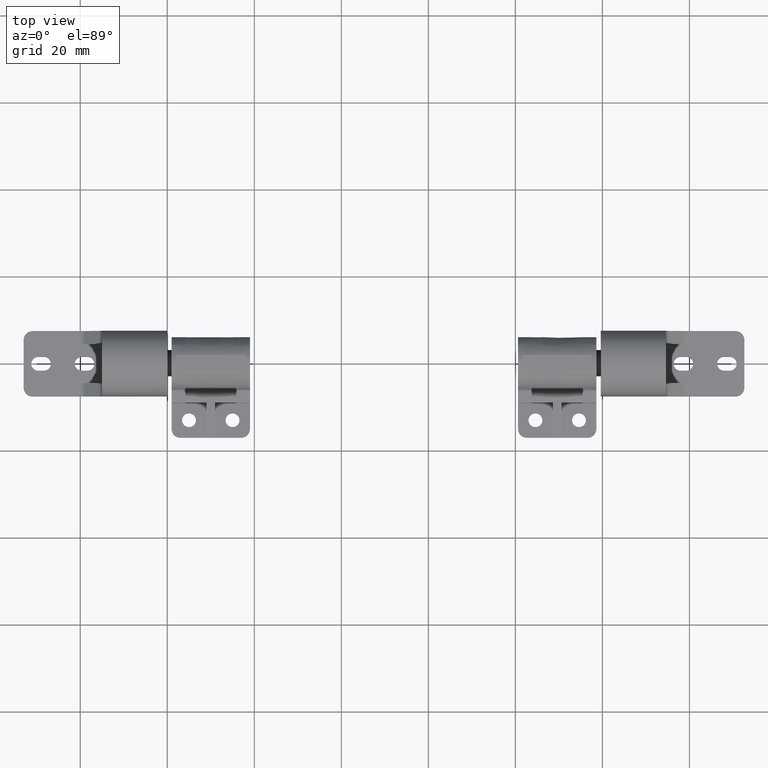
[diagram: clean part render]
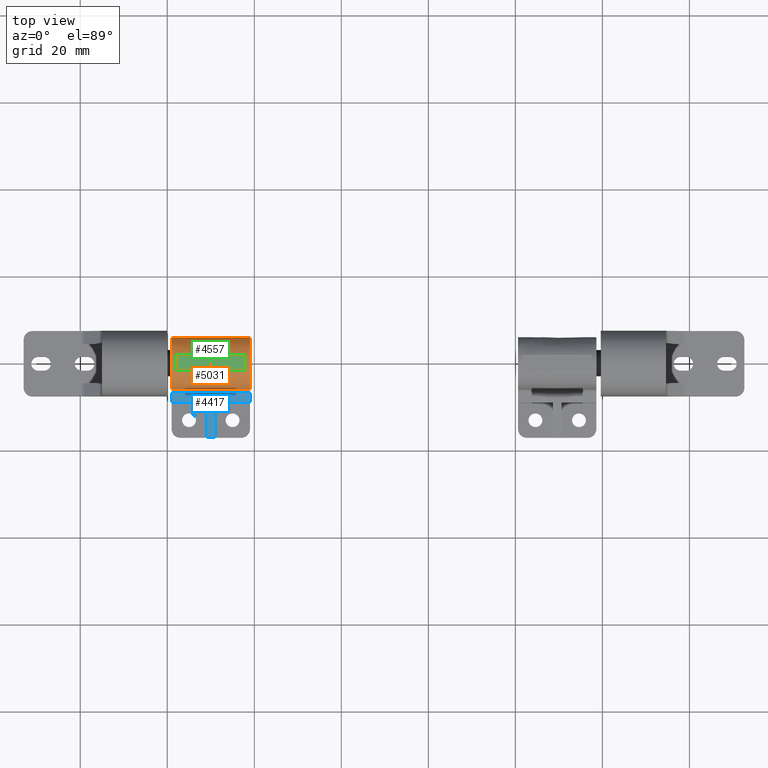
[diagram: same view with three faces highlighted in distinct colors, each labeled with its STEP entity id]
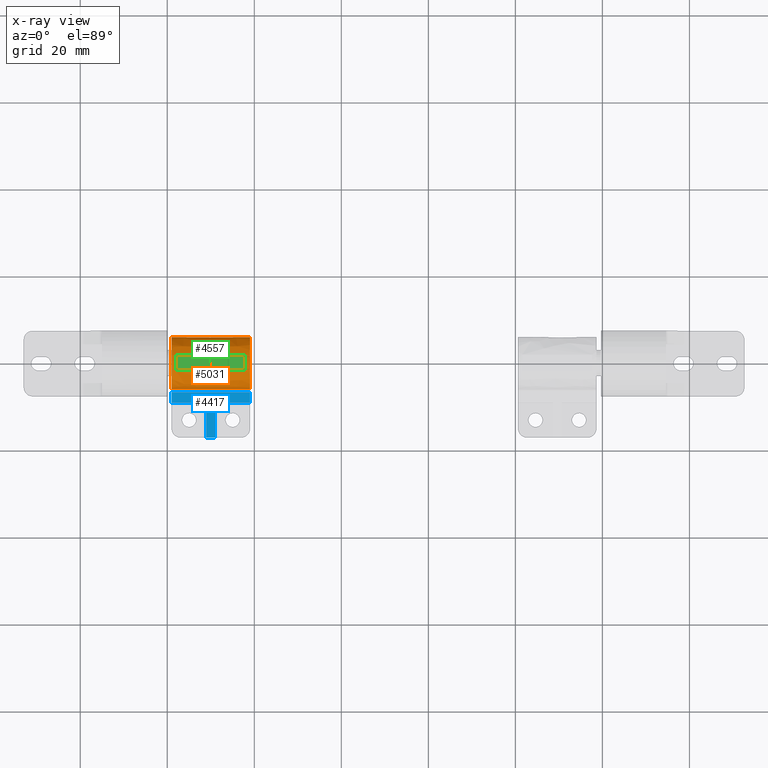
[diagram: x-ray of the same camera — body ghosted, the three highlighted faces saturated]
A machine part, top view with three faces highlighted in distinct colors.
The next image is the same camera in x-ray (body ghosted, the three faces saturated) — at least one of them is partly hidden behind the body in this view.
Their STEP definitions:

[orange] entity #5031 — the highlighted face is a freeform B-spline surface patch.
#4563=CARTESIAN_POINT('',(2.0,1.910000000000025,5.687873064687700));
#4564=VERTEX_POINT('',#4563);
#4570=CARTESIAN_POINT('',(2.0,-1.750000000000000,5.739120141624500));
#4571=VERTEX_POINT('',#4570);
#4572=CARTESIAN_POINT('',(2.0,1.910000000000027,5.687873064687705));
#4573=CARTESIAN_POINT('',(2.000000000000000,0.088207071545532,6.299635045620588));
#4574=CARTESIAN_POINT('',(2.0,-1.749999999999998,5.739120141624498));
#4582=(BOUNDED_CURVE()B_SPLINE_CURVE(2,(#4572,#4573,#4574),.UNSPECIFIED.,.F.,.U.)CURVE()GEOMETRIC_REPRESENTATION_ITEM()QUASI_UNIFORM_CURVE()RATIONAL_B_SPLINE_CURVE((1.0,0.952342775508499,1.0))REPRESENTATION_ITEM(''));
#4583=EDGE_CURVE('',#4564,#4571,#4582,.T.);
#4599=CARTESIAN_POINT('',(18.0,-1.750000000000000,5.739120141624480));
#4600=VERTEX_POINT('',#4599);
#4601=CARTESIAN_POINT('',(2.0,-1.750000000000000,5.739120141624500));
#4602=CARTESIAN_POINT('',(18.0,-1.750000000000000,5.739120141624480));
#4603=QUASI_UNIFORM_CURVE('',1,(#4601,#4602),.UNSPECIFIED.,.F.,.U.);
#4604=EDGE_CURVE('',#4571,#4600,#4603,.T.);
#4621=CARTESIAN_POINT('',(18.0,1.910000000000025,5.687873064687700));
#4622=VERTEX_POINT('',#4621);
#4623=CARTESIAN_POINT('',(18.0,-1.750000000000008,5.739120141624495));
#4624=CARTESIAN_POINT('',(18.000000000000004,0.088207071545523,6.299635045620589));
#4625=CARTESIAN_POINT('',(18.0,1.910000000000023,5.687873064687707));
#4633=(BOUNDED_CURVE()B_SPLINE_CURVE(2,(#4623,#4624,#4625),.UNSPECIFIED.,.F.,.U.)CURVE()GEOMETRIC_REPRESENTATION_ITEM()QUASI_UNIFORM_CURVE()RATIONAL_B_SPLINE_CURVE((1.0,0.952342775508499,1.0))REPRESENTATION_ITEM(''));
#4634=EDGE_CURVE('',#4600,#4622,#4633,.T.);
#4651=CARTESIAN_POINT('',(18.0,1.910000000000025,5.687873064687700));
#4652=CARTESIAN_POINT('',(2.0,1.910000000000025,5.687873064687700));
#4653=QUASI_UNIFORM_CURVE('',1,(#4651,#4652),.UNSPECIFIED.,.F.,.U.);
#4654=EDGE_CURVE('',#4622,#4564,#4653,.T.);
#4831=CARTESIAN_POINT('',(1.0,-5.963061465573160,0.664756269742384));
#4832=VERTEX_POINT('',#4831);
#4847=CARTESIAN_POINT('',(19.0,-5.963061465573160,0.664756269742384));
#4848=VERTEX_POINT('',#4847);
#4862=CARTESIAN_POINT('',(19.0,-5.963061465573160,0.664756269742384));
#4863=CARTESIAN_POINT('',(1.0,-5.963061465573160,0.664756269742384));
#4864=QUASI_UNIFORM_CURVE('',1,(#4862,#4863),.UNSPECIFIED.,.F.,.U.);
#4865=EDGE_CURVE('',#4848,#4832,#4864,.T.);
#4875=CARTESIAN_POINT('',(1.0,0.0,-6.0));
#4876=VERTEX_POINT('',#4875);
#4887=CARTESIAN_POINT('',(1.0,0.0,-6.0));
#4888=CARTESIAN_POINT('',(0.999999999999998,0.683003516224678,-6.000422743322672));
#4889=CARTESIAN_POINT('',(1.000000000000002,1.904975014488307,-5.789053288618614));
#4890=CARTESIAN_POINT('',(1.000000000000001,3.387877121074669,-5.023835368648354));
#4891=CARTESIAN_POINT('',(0.999999999999999,4.421781260313687,-4.118760480171805));
#4892=CARTESIAN_POINT('',(1.0,5.312675372058876,-2.935411293357646));
#4893=CARTESIAN_POINT('',(1.000000000000000,5.927458599038196,-1.416258870971202));
#4894=CARTESIAN_POINT('',(1.000000000000001,6.058951521096074,0.249284716233349));
#4895=CARTESIAN_POINT('',(0.999999999999997,5.779388398739612,1.852178067243991));
#4896=CARTESIAN_POINT('',(1.000000000000006,5.016333690146883,3.503014095104307));
#4897=CARTESIAN_POINT('',(1.000000000000006,3.633895151625215,4.914999744895434));
#4898=CARTESIAN_POINT('',(0.999999999999996,2.041441744614073,5.710124299993902));
#4899=CARTESIAN_POINT('',(1.000000000000001,0.733589322101287,5.991170177546183));
#4900=CARTESIAN_POINT('',(1.000000000000000,-0.456120781719186,6.018621232145915));
#4901=CARTESIAN_POINT('',(1.000000000000004,-1.918586273308607,5.774861336121426));
#4902=CARTESIAN_POINT('',(0.999999999999987,-3.429198765208127,5.038877207532663));
#4903=CARTESIAN_POINT('',(1.000000000000040,-4.796675747636022,3.742220981527704));
#4904=CARTESIAN_POINT('',(0.999999999999891,-5.635467522013679,2.292070811296781));
#4905=CARTESIAN_POINT('',(1.000000000000097,-5.907365240157194,1.164865443879301));
#4906=CARTESIAN_POINT('',(1.0,-5.963061465573160,0.664756269742384));
#4907=B_SPLINE_CURVE_WITH_KNOTS('',3,(#4887,#4888,#4889,#4890,#4891,#4892,#4893,#4894,#4895,#4896,#4897,#4898,#4899,#4900,#4901,#4902,#4903,#4904,#4905,#4906),.UNSPECIFIED.,.F.,.U.,(4,1,1,1,1,1,1,1,1,1,1,1,1,1,1,1,1,4),(0.000003514037079,2.048931480571827,3.666721996546485,4.960951569680923,6.147333549408042,8.088614003601467,9.813768146924225,11.108038385176521,12.941484499921771,15.206389486292370,16.931995198278599,18.226030072556419,19.196369232601938,20.490595359364789,22.647651328848479,24.157578894900301,26.098915589472838,27.608581685934301),.UNSPECIFIED.);
#4908=EDGE_CURVE('',#4876,#4832,#4907,.T.);
#4926=CARTESIAN_POINT('',(19.0,0.0,-6.0));
#4927=VERTEX_POINT('',#4926);
#4933=CARTESIAN_POINT('',(19.0,0.0,-6.0));
#4934=CARTESIAN_POINT('',(19.0,0.539203173098374,-6.000171482116119));
#4935=CARTESIAN_POINT('',(19.0,1.617515357905609,-5.853614845483816));
#4936=CARTESIAN_POINT('',(18.999999999999979,3.285349753928704,-5.140436731781801));
#4937=CARTESIAN_POINT('',(19.000000000000099,4.687286719929809,-3.913268866748784));
#4938=CARTESIAN_POINT('',(18.999999999999609,5.731084785663134,-2.124961037691978));
#4939=CARTESIAN_POINT('',(19.000000000000611,6.108289783212556,-0.222878501257990));
#4940=CARTESIAN_POINT('',(18.999999999999471,5.840589238880336,1.720260774754868));
#4941=CARTESIAN_POINT('',(19.000000000000309,5.153365386317126,3.205590547145973));
#4942=CARTESIAN_POINT('',(19.000000000000028,4.066358664649177,4.512100063599894));
#4943=CARTESIAN_POINT('',(18.999999999999961,2.660690427838675,5.489123362755387));
#4944=CARTESIAN_POINT('',(19.000000000000021,1.058807763342124,5.971476870142873));
#4945=CARTESIAN_POINT('',(18.999999999999989,-0.384892841220610,6.030606947741013));
#4946=CARTESIAN_POINT('',(19.0,-1.668664202973249,5.816081838544639));
#4947=CARTESIAN_POINT('',(18.999999999999989,-3.074704987814451,5.237839732080364));
#4948=CARTESIAN_POINT('',(19.000000000000121,-4.425341255313477,4.190012683182725));
#4949=CARTESIAN_POINT('',(18.999999999999659,-5.522071645334318,2.604652746459026));
#4950=CARTESIAN_POINT('',(19.000000000000298,-5.887789335244958,1.343640589216715));
#4951=CARTESIAN_POINT('',(19.0,-5.963061465573160,0.664756269742384));
#4952=B_SPLINE_CURVE_WITH_KNOTS('',3,(#4933,#4934,#4935,#4936,#4937,#4938,#4939,#4940,#4941,#4942,#4943,#4944,#4945,#4946,#4947,#4948,#4949,#4950,#4951),.UNSPECIFIED.,.F.,.U.,(4,1,1,1,1,1,1,1,1,1,1,1,1,1,1,1,4),(0.000003514037079,1.617591093182433,3.235341330857210,5.392337578917037,7.118008124042401,9.382607190190619,11.108038385176521,12.941484499921771,14.235713808285970,16.177048719254731,18.010487031814112,19.196369232601938,20.490595359364789,21.892665508223200,23.726179613560550,25.559600857285940,27.608581685934301),.UNSPECIFIED.);
#4953=EDGE_CURVE('',#4927,#4848,#4952,.T.);
#4975=CARTESIAN_POINT('',(19.0,0.0,-6.0));
#4976=CARTESIAN_POINT('',(1.0,0.0,-6.0));
#4977=QUASI_UNIFORM_CURVE('',1,(#4975,#4976),.UNSPECIFIED.,.F.,.U.);
#4978=EDGE_CURVE('',#4927,#4876,#4977,.T.);
#4997=CARTESIAN_POINT('',(19.449999999999999,-0.052359212990238,-5.999771538385026));
#4998=CARTESIAN_POINT('',(0.538750000000000,-0.052359212990238,-5.999771538385026));
#4999=CARTESIAN_POINT('',(19.450000000000006,5.843599857100137,-6.051224793689425));
#5000=CARTESIAN_POINT('',(0.538750000000000,5.843599857100137,-6.051224793689425));
#5001=CARTESIAN_POINT('',(19.449999999999999,5.997943949853342,-0.157061689847237));
#5002=CARTESIAN_POINT('',(0.538750000000000,5.997943949853342,-0.157061689847237));
#5003=CARTESIAN_POINT('',(19.450000000000006,6.152288042606547,5.737101413994951));
#5004=CARTESIAN_POINT('',(0.538750000000000,6.152288042606547,5.737101413994951));
#5005=CARTESIAN_POINT('',(19.449999999999999,0.261716324192017,5.994289329491146));
#5006=CARTESIAN_POINT('',(0.538750000000000,0.261716324192017,5.994289329491146));
#5007=CARTESIAN_POINT('',(19.450000000000006,-5.628855394222514,6.251477244987339));
#5008=CARTESIAN_POINT('',(0.538750000000000,-5.628855394222514,6.251477244987339));
#5009=CARTESIAN_POINT('',(19.449999999999999,-5.988808790531201,0.366291237209146));
#5010=CARTESIAN_POINT('',(0.538750000000000,-5.988808790531201,0.366291237209146));
#5018=(BOUNDED_SURFACE()B_SPLINE_SURFACE(1,2,((#4997,#4999,#5001,#5003,#5005,#5007,#5009),(#4998,#5000,#5002,#5004,#5006,#5008,#5010)),.UNSPECIFIED.,.F.,.F.,.U.)B_SPLINE_SURFACE_WITH_KNOTS((2,2),(3,2,2,3),(0.0,18.911249999999999),(0.0,9.818659234265029,19.637318468530061,29.455977702795089),.UNSPECIFIED.)GEOMETRIC_REPRESENTATION_ITEM()RATIONAL_B_SPLINE_SURFACE(((1.0,0.713250449154182,1.0,0.713250449154182,1.0,0.713250449154182,1.0),(1.0,0.713250449154182,1.0,0.713250449154182,1.0,0.713250449154182,1.0)))REPRESENTATION_ITEM('')SURFACE());
#5019=ORIENTED_EDGE('',*,*,#4908,.T.);
#5020=ORIENTED_EDGE('',*,*,#4865,.F.);
#5021=ORIENTED_EDGE('',*,*,#4953,.F.);
#5022=ORIENTED_EDGE('',*,*,#4978,.T.);
#5023=EDGE_LOOP('',(#5019,#5020,#5021,#5022));
#5024=FACE_OUTER_BOUND('',#5023,.T.);
#5025=ORIENTED_EDGE('',*,*,#4583,.F.);
#5026=ORIENTED_EDGE('',*,*,#4654,.F.);
#5027=ORIENTED_EDGE('',*,*,#4634,.F.);
#5028=ORIENTED_EDGE('',*,*,#4604,.F.);
#5029=EDGE_LOOP('',(#5025,#5026,#5027,#5028));
#5030=FACE_BOUND('',#5029,.T.);
#5031=ADVANCED_FACE('',(#5024,#5030),#5018,.T.);

[blue] entity #4417 — the highlighted face is a freeform B-spline surface patch.
#4338=CARTESIAN_POINT('',(11.010000000000000,-9.0,-0.818182100447359));
#4339=VERTEX_POINT('',#4338);
#4340=CARTESIAN_POINT('',(11.010000000000000,-17.0,-3.0));
#4341=VERTEX_POINT('',#4340);
#4342=CARTESIAN_POINT('',(11.010000000000000,-9.0,-0.818182100447359));
#4343=CARTESIAN_POINT('',(11.010000000000000,-17.0,-3.0));
#4344=QUASI_UNIFORM_CURVE('',1,(#4342,#4343),.UNSPECIFIED.,.F.,.U.);
#4345=EDGE_CURVE('',#4339,#4341,#4344,.T.);
#4362=CARTESIAN_POINT('',(0.100900034887493,-17.514795294265081,-3.140398698454106));
#4363=CARTESIAN_POINT('',(0.100900034887493,-6.178991931993088,-0.048816363252552));
#4364=CARTESIAN_POINT('',(19.899100447910129,-17.514795294265081,-3.140398698454106));
#4365=CARTESIAN_POINT('',(19.899100447910129,-6.178991931993088,-0.048816363252552));
#4366=B_SPLINE_SURFACE_WITH_KNOTS('',1,1,((#4362,#4364),(#4363,#4365)),.UNSPECIFIED.,.F.,.F.,.U.,(2,2),(2,2),(0.0,11.749822092416011),(0.0,19.798200413022631),.UNSPECIFIED.);
#4367=CARTESIAN_POINT('',(19.0,-9.0,-0.818182100447484));
#4368=VERTEX_POINT('',#4367);
#4369=CARTESIAN_POINT('',(19.0,-9.0,-0.818182100447484));
#4370=CARTESIAN_POINT('',(11.010000000000000,-9.0,-0.818182100447359));
#4371=QUASI_UNIFORM_CURVE('',1,(#4369,#4370),.UNSPECIFIED.,.F.,.U.);
#4372=EDGE_CURVE('',#4368,#4339,#4371,.T.);
#4373=ORIENTED_EDGE('',*,*,#4372,.F.);
#4374=CARTESIAN_POINT('',(19.0,-6.693787589207900,-0.189214819873997));
#4375=VERTEX_POINT('',#4374);
#4376=CARTESIAN_POINT('',(19.0,-6.693787589207900,-0.189214819873997));
#4377=CARTESIAN_POINT('',(19.0,-9.0,-0.818182100447484));
#4378=QUASI_UNIFORM_CURVE('',1,(#4376,#4377),.UNSPECIFIED.,.F.,.U.);
#4379=EDGE_CURVE('',#4375,#4368,#4378,.T.);
#4380=ORIENTED_EDGE('',*,*,#4379,.F.);
#4381=CARTESIAN_POINT('',(1.0,-6.693787589207900,-0.189214819873997));
#4382=VERTEX_POINT('',#4381);
#4383=CARTESIAN_POINT('',(19.0,-6.693787589207900,-0.189214819873997));
#4384=CARTESIAN_POINT('',(1.0,-6.693787589207900,-0.189214819873997));
#4385=QUASI_UNIFORM_CURVE('',1,(#4383,#4384),.UNSPECIFIED.,.F.,.U.);
#4386=EDGE_CURVE('',#4375,#4382,#4385,.T.);
#4387=ORIENTED_EDGE('',*,*,#4386,.T.);
#4388=CARTESIAN_POINT('',(1.0,-9.0,-0.818182100447359));
#4389=VERTEX_POINT('',#4388);
#4390=CARTESIAN_POINT('',(1.0,-6.693787589207900,-0.189214819873997));
#4391=CARTESIAN_POINT('',(1.0,-9.0,-0.818182100447359));
#4392=QUASI_UNIFORM_CURVE('',1,(#4390,#4391),.UNSPECIFIED.,.F.,.U.);
#4393=EDGE_CURVE('',#4382,#4389,#4392,.T.);
#4394=ORIENTED_EDGE('',*,*,#4393,.T.);
#4395=CARTESIAN_POINT('',(8.990000000000000,-9.0,-0.818182100447359));
#4396=VERTEX_POINT('',#4395);
#4397=CARTESIAN_POINT('',(8.990000000000000,-9.0,-0.818182100447359));
#4398=CARTESIAN_POINT('',(1.0,-9.0,-0.818182100447359));
#4399=QUASI_UNIFORM_CURVE('',1,(#4397,#4398),.UNSPECIFIED.,.F.,.U.);
#4400=EDGE_CURVE('',#4396,#4389,#4399,.T.);
#4401=ORIENTED_EDGE('',*,*,#4400,.F.);
#4402=CARTESIAN_POINT('',(8.990000000000000,-17.0,-3.0));
#4403=VERTEX_POINT('',#4402);
#4404=CARTESIAN_POINT('',(8.990000000000000,-17.0,-3.0));
#4405=CARTESIAN_POINT('',(8.990000000000000,-9.0,-0.818182100447359));
#4406=QUASI_UNIFORM_CURVE('',1,(#4404,#4405),.UNSPECIFIED.,.F.,.U.);
#4407=EDGE_CURVE('',#4403,#4396,#4406,.T.);
#4408=ORIENTED_EDGE('',*,*,#4407,.F.);
#4409=CARTESIAN_POINT('',(11.010000000000000,-17.0,-3.0));
#4410=CARTESIAN_POINT('',(8.990000000000000,-17.0,-3.0));
#4411=QUASI_UNIFORM_CURVE('',1,(#4409,#4410),.UNSPECIFIED.,.F.,.U.);
#4412=EDGE_CURVE('',#4341,#4403,#4411,.T.);
#4413=ORIENTED_EDGE('',*,*,#4412,.F.);
#4414=ORIENTED_EDGE('',*,*,#4345,.F.);
#4415=EDGE_LOOP('',(#4373,#4380,#4387,#4394,#4401,#4408,#4413,#4414));
#4416=FACE_OUTER_BOUND('',#4415,.T.);
#4417=ADVANCED_FACE('',(#4416),#4366,.F.);

[green] entity #4557 — the highlighted face is a freeform B-spline surface patch.
#4522=CARTESIAN_POINT('',(1.200800031011105,2.092816992906236,5.500000000000000));
#4523=CARTESIAN_POINT('',(18.799200398142339,2.092816992906236,5.500000000000000));
#4524=CARTESIAN_POINT('',(1.200800031011105,-1.932817091075061,5.500000000000000));
#4525=CARTESIAN_POINT('',(18.799200398142339,-1.932817091075061,5.500000000000000));
#4526=B_SPLINE_SURFACE_WITH_KNOTS('',1,1,((#4522,#4524),(#4523,#4525)),.UNSPECIFIED.,.F.,.F.,.U.,(2,2),(2,2),(0.0,17.598400367131230),(0.0,4.025634083981297),.UNSPECIFIED.);
#4527=CARTESIAN_POINT('',(2.0,1.910000000000025,5.500000000000000));
#4528=VERTEX_POINT('',#4527);
#4529=CARTESIAN_POINT('',(18.0,1.910000000000025,5.500000000000000));
#4530=VERTEX_POINT('',#4529);
#4531=CARTESIAN_POINT('',(2.0,1.910000000000025,5.500000000000000));
#4532=CARTESIAN_POINT('',(18.0,1.910000000000025,5.500000000000000));
#4533=QUASI_UNIFORM_CURVE('',1,(#4531,#4532),.UNSPECIFIED.,.F.,.U.);
#4534=EDGE_CURVE('',#4528,#4530,#4533,.T.);
#4535=ORIENTED_EDGE('',*,*,#4534,.F.);
#4536=CARTESIAN_POINT('',(2.0,-1.750000000000000,5.500000000000000));
#4537=VERTEX_POINT('',#4536);
#4538=CARTESIAN_POINT('',(2.0,-1.750000000000000,5.500000000000000));
#4539=CARTESIAN_POINT('',(2.0,1.910000000000025,5.500000000000000));
#4540=QUASI_UNIFORM_CURVE('',1,(#4538,#4539),.UNSPECIFIED.,.F.,.U.);
#4541=EDGE_CURVE('',#4537,#4528,#4540,.T.);
#4542=ORIENTED_EDGE('',*,*,#4541,.F.);
#4543=CARTESIAN_POINT('',(18.0,-1.750000000000000,5.500000000000000));
#4544=VERTEX_POINT('',#4543);
#4545=CARTESIAN_POINT('',(18.0,-1.750000000000000,5.500000000000000));
#4546=CARTESIAN_POINT('',(2.0,-1.750000000000000,5.500000000000000));
#4547=QUASI_UNIFORM_CURVE('',1,(#4545,#4546),.UNSPECIFIED.,.F.,.U.);
#4548=EDGE_CURVE('',#4544,#4537,#4547,.T.);
#4549=ORIENTED_EDGE('',*,*,#4548,.F.);
#4550=CARTESIAN_POINT('',(18.0,1.910000000000025,5.500000000000000));
#4551=CARTESIAN_POINT('',(18.0,-1.750000000000000,5.500000000000000));
#4552=QUASI_UNIFORM_CURVE('',1,(#4550,#4551),.UNSPECIFIED.,.F.,.U.);
#4553=EDGE_CURVE('',#4530,#4544,#4552,.T.);
#4554=ORIENTED_EDGE('',*,*,#4553,.F.);
#4555=EDGE_LOOP('',(#4535,#4542,#4549,#4554));
#4556=FACE_OUTER_BOUND('',#4555,.T.);
#4557=ADVANCED_FACE('',(#4556),#4526,.F.);